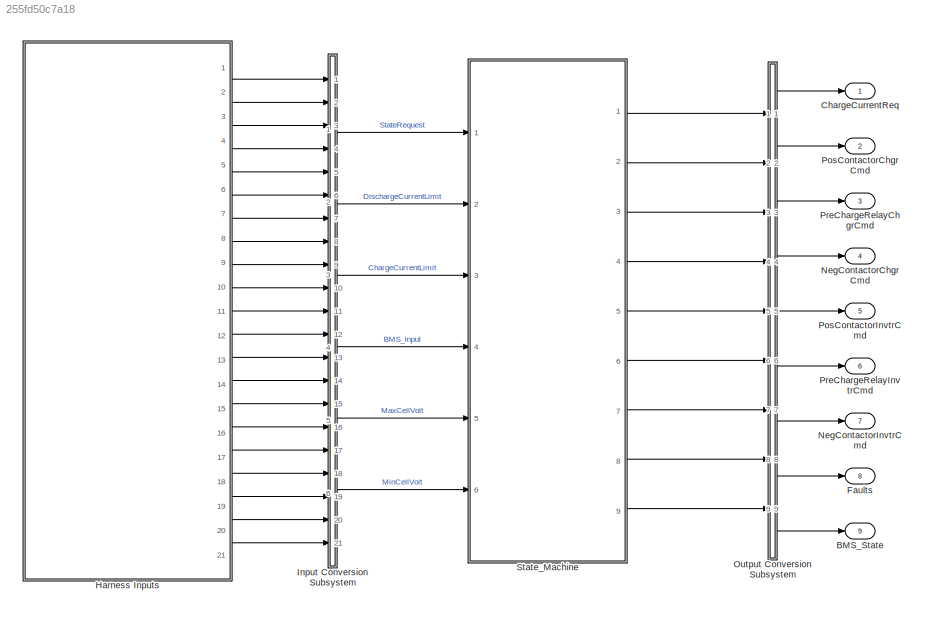
MODEL slx_255fd50c7a18
KIND model
CONFIG AbsTol = auto
CONFIG EnableMultiTasking = on
CONFIG FixedStep = 0.10000000000000001
CONFIG MaxStep = auto
CONFIG MinStep = auto
CONFIG RelTol = 1e-3
CONFIG SampleTimeConstraint = Unconstrained
CONFIG SolverName = FixedStepDiscrete
CONFIG StartTime = 0
CONFIG StopTime = 1.4000000000000001
BLOCK [Outport] BMS_State
  OutDataTypeStr = Enum: BMS_State_Enum
  Port = 9
  PortDimensions = [1]
  SignalType = real
  VarSizeSig = No
  VectorParamsAs1DForOutWhenUnconnected = off
BLOCK [Outport] ChargeCurrentReq
  OutDataTypeStr = single
  PortDimensions = [1]
  SignalType = real
  VarSizeSig = No
  VectorParamsAs1DForOutWhenUnconnected = off
BLOCK [Outport] Faults
  OutDataTypeStr = Bus: Faults
  Port = 8
  PortDimensions = 1
  SignalType = real
  VarSizeSig = No
  VectorParamsAs1DForOutWhenUnconnected = off
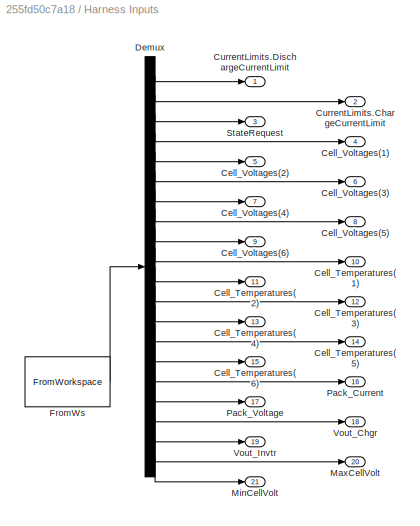
BLOCK [SubSystem] Harness Inputs
  ClipboardFcn = sigbuilder_block('clipboard');
  CloseFcn = sigbuilder_block('close');
  ContinueFcn = sigbuilder_block('continue');
  CopyFcn = sigbuilder_block('copy');
  DeleteFcn = sigbuilder_block('delete');
  LoadFcn = sigbuilder_block('load');
  MaskHideContents = on
  ModelCloseFcn = sigbuilder_block('modelClose');
  NameChangeFcn = sigbuilder_block('namechange');
  OpenFcn = sigbuilder_block('open',[50 50 520 400 ]);
  PauseFcn = sigbuilder_block('pause');
  Ports = [0, 21]
  PreSaveFcn = sigbuilder_block('preSave');
  RequestExecContextInheritance = off
  StartFcn = sigbuilder_block('start');
  StopFcn = sigbuilder_block('stop');
  Tag = STV Subsys
BLOCK [Outport] Harness Inputs/Cell_Temperatures(1)
  Port = 10
  Tag = STV Outport
  VectorParamsAs1DForOutWhenUnconnected = off
BLOCK [Outport] Harness Inputs/Cell_Temperatures(2)
  Port = 11
  Tag = STV Outport
  VectorParamsAs1DForOutWhenUnconnected = off
BLOCK [Outport] Harness Inputs/Cell_Temperatures(3)
  Port = 12
  Tag = STV Outport
  VectorParamsAs1DForOutWhenUnconnected = off
BLOCK [Outport] Harness Inputs/Cell_Temperatures(4)
  Port = 13
  Tag = STV Outport
  VectorParamsAs1DForOutWhenUnconnected = off
BLOCK [Outport] Harness Inputs/Cell_Temperatures(5)
  Port = 14
  Tag = STV Outport
  VectorParamsAs1DForOutWhenUnconnected = off
BLOCK [Outport] Harness Inputs/Cell_Temperatures(6)
  Port = 15
  Tag = STV Outport
  VectorParamsAs1DForOutWhenUnconnected = off
BLOCK [Outport] Harness Inputs/Cell_Voltages(1)
  Port = 4
  Tag = STV Outport
  VectorParamsAs1DForOutWhenUnconnected = off
BLOCK [Outport] Harness Inputs/Cell_Voltages(2)
  Port = 5
  Tag = STV Outport
  VectorParamsAs1DForOutWhenUnconnected = off
BLOCK [Outport] Harness Inputs/Cell_Voltages(3)
  Port = 6
  Tag = STV Outport
  VectorParamsAs1DForOutWhenUnconnected = off
BLOCK [Outport] Harness Inputs/Cell_Voltages(4)
  Port = 7
  Tag = STV Outport
  VectorParamsAs1DForOutWhenUnconnected = off
BLOCK [Outport] Harness Inputs/Cell_Voltages(5)
  Port = 8
  Tag = STV Outport
  VectorParamsAs1DForOutWhenUnconnected = off
BLOCK [Outport] Harness Inputs/Cell_Voltages(6)
  Port = 9
  Tag = STV Outport
  VectorParamsAs1DForOutWhenUnconnected = off
BLOCK [Outport] Harness Inputs/CurrentLimits.ChargeCurrentLimit
  Port = 2
  Tag = STV Outport
  VectorParamsAs1DForOutWhenUnconnected = off
BLOCK [Outport] Harness Inputs/CurrentLimits.DischargeCurrentLimit
  Tag = STV Outport
  VectorParamsAs1DForOutWhenUnconnected = off
BLOCK [Demux] Harness Inputs/Demux
  DisplayOption = none
  Outputs = 21
  Ports = [1, 21]
  Tag = STV Demux
BLOCK [FromWorkspace] Harness Inputs/FromWs
  Tag = STV FromWs
  VariableName = tuvar
  ZeroCross = off
BLOCK [Outport] Harness Inputs/MaxCellVolt
  Port = 20
  Tag = STV Outport
  VectorParamsAs1DForOutWhenUnconnected = off
BLOCK [Outport] Harness Inputs/MinCellVolt
  Port = 21
  Tag = STV Outport
  VectorParamsAs1DForOutWhenUnconnected = off
BLOCK [Outport] Harness Inputs/Pack_Current
  Port = 16
  Tag = STV Outport
  VectorParamsAs1DForOutWhenUnconnected = off
BLOCK [Outport] Harness Inputs/Pack_Voltage
  Port = 17
  Tag = STV Outport
  VectorParamsAs1DForOutWhenUnconnected = off
BLOCK [Outport] Harness Inputs/StateRequest
  Port = 3
  Tag = STV Outport
  VectorParamsAs1DForOutWhenUnconnected = off
BLOCK [Outport] Harness Inputs/Vout_Chgr
  Port = 18
  Tag = STV Outport
  VectorParamsAs1DForOutWhenUnconnected = off
BLOCK [Outport] Harness Inputs/Vout_Invtr
  Port = 19
  Tag = STV Outport
  VectorParamsAs1DForOutWhenUnconnected = off
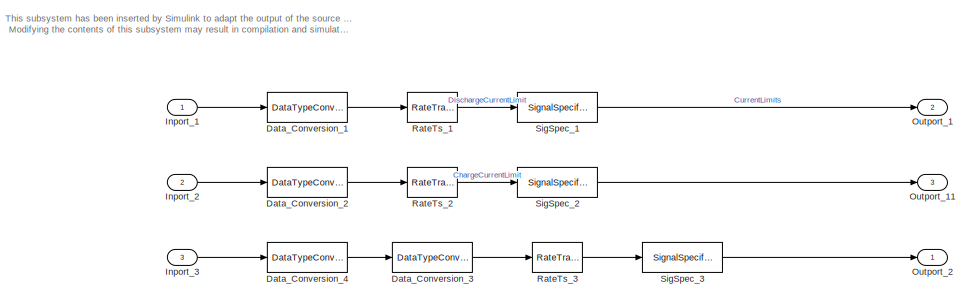
[diagram: Input Conversion Subsystem - part 1/2, full width, top band]
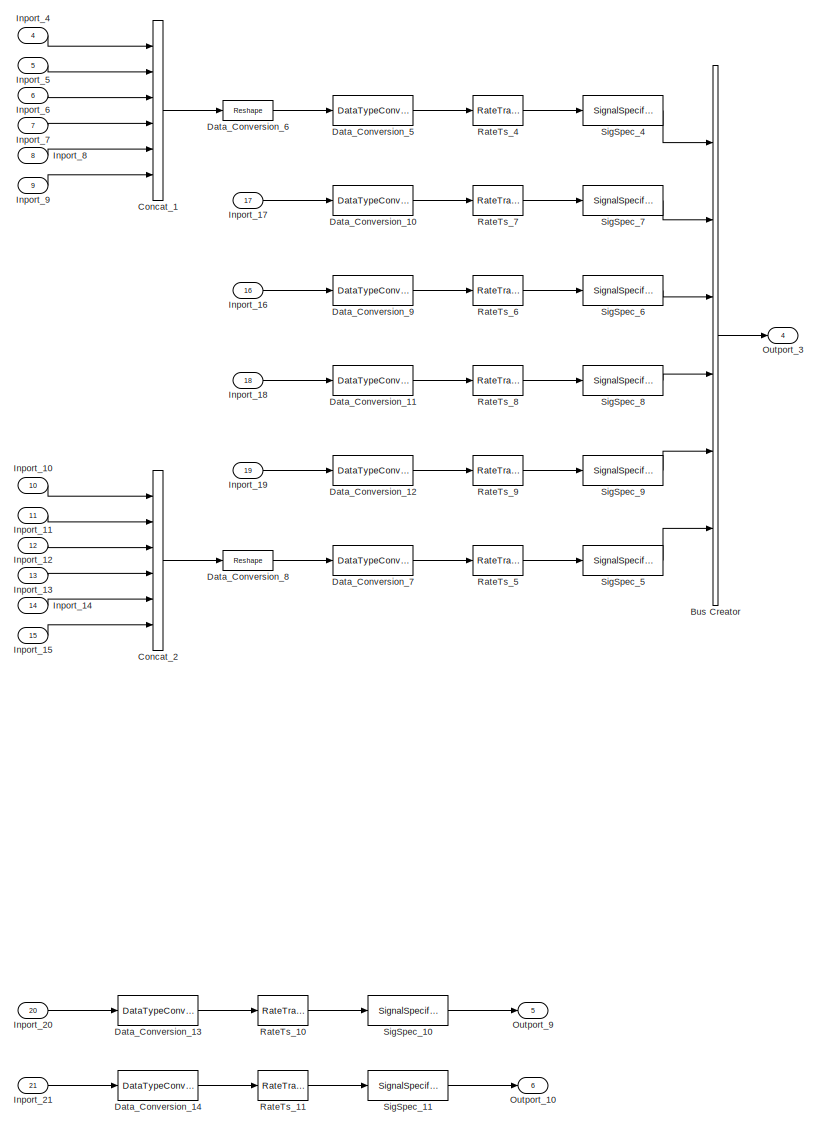
[diagram: Input Conversion Subsystem - part 2/2, most of the canvas]
BLOCK [SubSystem] Input Conversion Subsystem
  AttributesFormatString = %<Description>
  Description = Signal spec.\nand routing
  Permissions = ReadOnly
  PermitHierarchicalResolution = ExplicitOnly
  Ports = [21, 6]
  RequestExecContextInheritance = off
  Tag = __SLT_ICS__
  UserDataPersistent = on
BLOCK [BusCreator] Input Conversion Subsystem/Bus Creator
  DisplayOption = bar
  InheritFromInputs = off
  Inputs = 6
  OutDataTypeStr = Bus: BMS_Input
  Ports = [6, 1]
BLOCK [Concatenate] Input Conversion Subsystem/Concat_1
  NumInputs = 6
  Ports = [6, 1]
BLOCK [Concatenate] Input Conversion Subsystem/Concat_2
  NumInputs = 6
  Ports = [6, 1]
BLOCK [DataTypeConversion] Input Conversion Subsystem/Data_Conversion_1
  OutDataTypeStr = single
BLOCK [DataTypeConversion] Input Conversion Subsystem/Data_Conversion_10
  OutDataTypeStr = single
BLOCK [DataTypeConversion] Input Conversion Subsystem/Data_Conversion_11
  OutDataTypeStr = single
BLOCK [DataTypeConversion] Input Conversion Subsystem/Data_Conversion_12
  OutDataTypeStr = single
BLOCK [DataTypeConversion] Input Conversion Subsystem/Data_Conversion_13
  OutDataTypeStr = single
BLOCK [DataTypeConversion] Input Conversion Subsystem/Data_Conversion_14
  OutDataTypeStr = single
BLOCK [DataTypeConversion] Input Conversion Subsystem/Data_Conversion_2
  OutDataTypeStr = single
BLOCK [DataTypeConversion] Input Conversion Subsystem/Data_Conversion_3
  OutDataTypeStr = Enum: SRE
BLOCK [DataTypeConversion] Input Conversion Subsystem/Data_Conversion_4
  OutDataTypeStr = int32
  RndMeth = Round
BLOCK [DataTypeConversion] Input Conversion Subsystem/Data_Conversion_5
  OutDataTypeStr = single
BLOCK [Reshape] Input Conversion Subsystem/Data_Conversion_6
  OutputDimensionality = Customize
  OutputDimensions = [6]
  Ports = [1, 1]
BLOCK [DataTypeConversion] Input Conversion Subsystem/Data_Conversion_7
  OutDataTypeStr = single
BLOCK [Reshape] Input Conversion Subsystem/Data_Conversion_8
  OutputDimensionality = Customize
  OutputDimensions = [6]
  Ports = [1, 1]
BLOCK [DataTypeConversion] Input Conversion Subsystem/Data_Conversion_9
  OutDataTypeStr = single
BLOCK [Inport] Input Conversion Subsystem/Inport_1
BLOCK [Inport] Input Conversion Subsystem/Inport_10
  Port = 10
BLOCK [Inport] Input Conversion Subsystem/Inport_11
  Port = 11
BLOCK [Inport] Input Conversion Subsystem/Inport_12
  Port = 12
BLOCK [Inport] Input Conversion Subsystem/Inport_13
  Port = 13
BLOCK [Inport] Input Conversion Subsystem/Inport_14
  Port = 14
BLOCK [Inport] Input Conversion Subsystem/Inport_15
  Port = 15
BLOCK [Inport] Input Conversion Subsystem/Inport_16
  Port = 16
BLOCK [Inport] Input Conversion Subsystem/Inport_17
  Port = 17
BLOCK [Inport] Input Conversion Subsystem/Inport_18
  Port = 18
BLOCK [Inport] Input Conversion Subsystem/Inport_19
  Port = 19
BLOCK [Inport] Input Conversion Subsystem/Inport_2
  Port = 2
BLOCK [Inport] Input Conversion Subsystem/Inport_20
  Port = 20
BLOCK [Inport] Input Conversion Subsystem/Inport_21
  Port = 21
BLOCK [Inport] Input Conversion Subsystem/Inport_3
  Port = 3
BLOCK [Inport] Input Conversion Subsystem/Inport_4
  Port = 4
BLOCK [Inport] Input Conversion Subsystem/Inport_5
  Port = 5
BLOCK [Inport] Input Conversion Subsystem/Inport_6
  Port = 6
BLOCK [Inport] Input Conversion Subsystem/Inport_7
  Port = 7
BLOCK [Inport] Input Conversion Subsystem/Inport_8
  Port = 8
BLOCK [Inport] Input Conversion Subsystem/Inport_9
  Port = 9
BLOCK [Outport] Input Conversion Subsystem/Outport_1
  Port = 2
  VectorParamsAs1DForOutWhenUnconnected = off
BLOCK [Outport] Input Conversion Subsystem/Outport_10
  Port = 6
  VectorParamsAs1DForOutWhenUnconnected = off
BLOCK [Outport] Input Conversion Subsystem/Outport_11
  Port = 3
  VectorParamsAs1DForOutWhenUnconnected = off
BLOCK [Outport] Input Conversion Subsystem/Outport_2
  VectorParamsAs1DForOutWhenUnconnected = off
BLOCK [Outport] Input Conversion Subsystem/Outport_3
  Port = 4
  VectorParamsAs1DForOutWhenUnconnected = off
BLOCK [Outport] Input Conversion Subsystem/Outport_9
  Port = 5
  VectorParamsAs1DForOutWhenUnconnected = off
BLOCK [RateTransition] Input Conversion Subsystem/RateTs_1
  OutPortSampleTime = 0.1
BLOCK [RateTransition] Input Conversion Subsystem/RateTs_10
  OutPortSampleTime = 0.1
BLOCK [RateTransition] Input Conversion Subsystem/RateTs_11
  OutPortSampleTime = 0.1
BLOCK [RateTransition] Input Conversion Subsystem/RateTs_2
  OutPortSampleTime = 0.1
BLOCK [RateTransition] Input Conversion Subsystem/RateTs_3
  OutPortSampleTime = 0.1
BLOCK [RateTransition] Input Conversion Subsystem/RateTs_4
  OutPortSampleTime = 0.1
BLOCK [RateTransition] Input Conversion Subsystem/RateTs_5
  OutPortSampleTime = 0.1
BLOCK [RateTransition] Input Conversion Subsystem/RateTs_6
  OutPortSampleTime = 0.1
BLOCK [RateTransition] Input Conversion Subsystem/RateTs_7
  OutPortSampleTime = 0.1
BLOCK [RateTransition] Input Conversion Subsystem/RateTs_8
  OutPortSampleTime = 0.1
BLOCK [RateTransition] Input Conversion Subsystem/RateTs_9
  OutPortSampleTime = 0.1
BLOCK [SignalSpecification] Input Conversion Subsystem/SigSpec_1
  Dimensions = [1]
  OutDataTypeStr = single
  SampleTime = 0.1
  SignalType = real
  VarSizeSig = No
BLOCK [SignalSpecification] Input Conversion Subsystem/SigSpec_10
  Dimensions = [1]
  OutDataTypeStr = single
  SampleTime = 0.1
  SignalType = real
  VarSizeSig = No
BLOCK [SignalSpecification] Input Conversion Subsystem/SigSpec_11
  Dimensions = [1]
  OutDataTypeStr = single
  SampleTime = 0.1
  SignalType = real
  VarSizeSig = No
BLOCK [SignalSpecification] Input Conversion Subsystem/SigSpec_2
  Dimensions = [1]
  OutDataTypeStr = single
  SampleTime = 0.1
  SignalType = real
  VarSizeSig = No
BLOCK [SignalSpecification] Input Conversion Subsystem/SigSpec_3
  Dimensions = [1]
  OutDataTypeStr = Enum: SRE
  SampleTime = 0.1
  SignalType = real
  VarSizeSig = No
BLOCK [SignalSpecification] Input Conversion Subsystem/SigSpec_4
  Dimensions = [6]
  OutDataTypeStr = single
  SampleTime = 0.1
  SignalType = real
  VarSizeSig = No
BLOCK [SignalSpecification] Input Conversion Subsystem/SigSpec_5
  Dimensions = [6]
  OutDataTypeStr = single
  SampleTime = 0.1
  SignalType = real
  VarSizeSig = No
BLOCK [SignalSpecification] Input Conversion Subsystem/SigSpec_6
  Dimensions = [1]
  OutDataTypeStr = single
  SampleTime = 0.1
  SignalType = real
  VarSizeSig = No
BLOCK [SignalSpecification] Input Conversion Subsystem/SigSpec_7
  Dimensions = [1]
  OutDataTypeStr = single
  SampleTime = 0.1
  SignalType = real
  VarSizeSig = No
BLOCK [SignalSpecification] Input Conversion Subsystem/SigSpec_8
  Dimensions = [1]
  OutDataTypeStr = single
  SampleTime = 0.1
  SignalType = real
  VarSizeSig = No
BLOCK [SignalSpecification] Input Conversion Subsystem/SigSpec_9
  Dimensions = [1]
  OutDataTypeStr = single
  SampleTime = 0.1
  SignalType = real
  VarSizeSig = No
BLOCK [Outport] NegContactorChgrCmd
  OutDataTypeStr = boolean
  Port = 4
  PortDimensions = [1]
  SignalType = real
  VarSizeSig = No
  VectorParamsAs1DForOutWhenUnconnected = off
BLOCK [Outport] NegContactorInvtrCmd
  OutDataTypeStr = boolean
  Port = 7
  PortDimensions = [1]
  SignalType = real
  VarSizeSig = No
  VectorParamsAs1DForOutWhenUnconnected = off
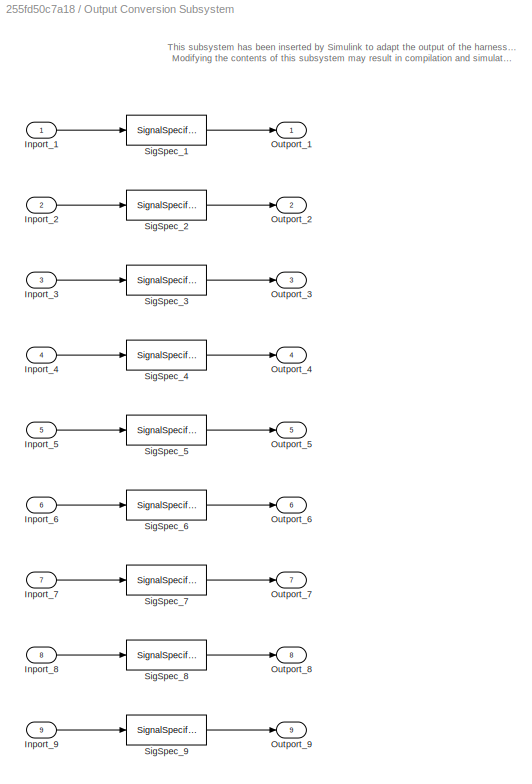
BLOCK [SubSystem] Output Conversion Subsystem
  AttributesFormatString = %<Description>
  Description = Signal spec.\nand routing
  Permissions = ReadOnly
  PermitHierarchicalResolution = ExplicitOnly
  Ports = [9, 9]
  RequestExecContextInheritance = off
  Tag = __SLT_OCS__
  UserDataPersistent = on
BLOCK [Inport] Output Conversion Subsystem/Inport_1
BLOCK [Inport] Output Conversion Subsystem/Inport_2
  Port = 2
BLOCK [Inport] Output Conversion Subsystem/Inport_3
  Port = 3
BLOCK [Inport] Output Conversion Subsystem/Inport_4
  Port = 4
BLOCK [Inport] Output Conversion Subsystem/Inport_5
  Port = 5
BLOCK [Inport] Output Conversion Subsystem/Inport_6
  Port = 6
BLOCK [Inport] Output Conversion Subsystem/Inport_7
  Port = 7
BLOCK [Inport] Output Conversion Subsystem/Inport_8
  Port = 8
BLOCK [Inport] Output Conversion Subsystem/Inport_9
  Port = 9
BLOCK [Outport] Output Conversion Subsystem/Outport_1
  VectorParamsAs1DForOutWhenUnconnected = off
BLOCK [Outport] Output Conversion Subsystem/Outport_2
  Port = 2
  VectorParamsAs1DForOutWhenUnconnected = off
BLOCK [Outport] Output Conversion Subsystem/Outport_3
  Port = 3
  VectorParamsAs1DForOutWhenUnconnected = off
BLOCK [Outport] Output Conversion Subsystem/Outport_4
  Port = 4
  VectorParamsAs1DForOutWhenUnconnected = off
BLOCK [Outport] Output Conversion Subsystem/Outport_5
  Port = 5
  VectorParamsAs1DForOutWhenUnconnected = off
BLOCK [Outport] Output Conversion Subsystem/Outport_6
  Port = 6
  VectorParamsAs1DForOutWhenUnconnected = off
BLOCK [Outport] Output Conversion Subsystem/Outport_7
  Port = 7
  VectorParamsAs1DForOutWhenUnconnected = off
BLOCK [Outport] Output Conversion Subsystem/Outport_8
  Port = 8
  VectorParamsAs1DForOutWhenUnconnected = off
BLOCK [Outport] Output Conversion Subsystem/Outport_9
  Port = 9
  VectorParamsAs1DForOutWhenUnconnected = off
BLOCK [SignalSpecification] Output Conversion Subsystem/SigSpec_1
  Dimensions = [1]
  OutDataTypeStr = single
  SampleTime = 0.1
  SignalType = real
  VarSizeSig = No
BLOCK [SignalSpecification] Output Conversion Subsystem/SigSpec_2
  Dimensions = [1]
  OutDataTypeStr = boolean
  SampleTime = 0.1
  SignalType = real
  VarSizeSig = No
BLOCK [SignalSpecification] Output Conversion Subsystem/SigSpec_3
  Dimensions = [1]
  OutDataTypeStr = boolean
  SampleTime = 0.1
  SignalType = real
  VarSizeSig = No
BLOCK [SignalSpecification] Output Conversion Subsystem/SigSpec_4
  Dimensions = [1]
  OutDataTypeStr = boolean
  SampleTime = 0.1
  SignalType = real
  VarSizeSig = No
BLOCK [SignalSpecification] Output Conversion Subsystem/SigSpec_5
  Dimensions = [1]
  OutDataTypeStr = boolean
  SampleTime = 0.1
  SignalType = real
  VarSizeSig = No
BLOCK [SignalSpecification] Output Conversion Subsystem/SigSpec_6
  Dimensions = [1]
  OutDataTypeStr = boolean
  SampleTime = 0.1
  SignalType = real
  VarSizeSig = No
BLOCK [SignalSpecification] Output Conversion Subsystem/SigSpec_7
  Dimensions = [1]
  OutDataTypeStr = boolean
  SampleTime = 0.1
  SignalType = real
  VarSizeSig = No
BLOCK [SignalSpecification] Output Conversion Subsystem/SigSpec_8
  BusOutputAsStruct = on
  Dimensions = [1]
  OutDataTypeStr = Bus: Faults
  SampleTime = 0.1
  SignalType = real
  VarSizeSig = No
BLOCK [SignalSpecification] Output Conversion Subsystem/SigSpec_9
  Dimensions = [1]
  OutDataTypeStr = Enum: BMS_State_Enum
  SampleTime = 0.1
  SignalType = real
  VarSizeSig = No
BLOCK [Outport] PosContactorChgrCmd
  OutDataTypeStr = boolean
  Port = 2
  PortDimensions = [1]
  SignalType = real
  VarSizeSig = No
  VectorParamsAs1DForOutWhenUnconnected = off
BLOCK [Outport] PosContactorInvtrCmd
  OutDataTypeStr = boolean
  Port = 5
  PortDimensions = [1]
  SignalType = real
  VarSizeSig = No
  VectorParamsAs1DForOutWhenUnconnected = off
BLOCK [Outport] PreChargeRelayChgrCmd
  OutDataTypeStr = boolean
  Port = 3
  PortDimensions = [1]
  SignalType = real
  VarSizeSig = No
  VectorParamsAs1DForOutWhenUnconnected = off
BLOCK [Outport] PreChargeRelayInvtrCmd
  OutDataTypeStr = boolean
  Port = 6
  PortDimensions = [1]
  SignalType = real
  VarSizeSig = No
  VectorParamsAs1DForOutWhenUnconnected = off
BLOCK [ModelReference] State_Machine
  ModelNameDialog = State_Machine
  ModelReferenceVersion = 1.671
  Ports = [6, 9]
ANNOTATION Input Conversion Subsystem: This subsystem has been inserted by Simulink to adapt the output of the source blocks to the interface required by the harnessed component. Modifying the contents of this subsystem may result in compilation and simulation failure.
ANNOTATION Output Conversion Subsystem: This subsystem has been inserted by Simulink to adapt the output of the harnessed component to the interface required by the sink blocks. Modifying the contents of this subsystem may result in compilation and simulation failure.
LINE Harness Inputs/Demux:1 -> Harness Inputs/CurrentLimits.DischargeCurrentLimit:1
LINE Harness Inputs/Demux:10 -> Harness Inputs/Cell_Temperatures(1):1
LINE Harness Inputs/Demux:11 -> Harness Inputs/Cell_Temperatures(2):1
LINE Harness Inputs/Demux:12 -> Harness Inputs/Cell_Temperatures(3):1
LINE Harness Inputs/Demux:13 -> Harness Inputs/Cell_Temperatures(4):1
LINE Harness Inputs/Demux:14 -> Harness Inputs/Cell_Temperatures(5):1
LINE Harness Inputs/Demux:15 -> Harness Inputs/Cell_Temperatures(6):1
LINE Harness Inputs/Demux:16 -> Harness Inputs/Pack_Current:1
LINE Harness Inputs/Demux:17 -> Harness Inputs/Pack_Voltage:1
LINE Harness Inputs/Demux:18 -> Harness Inputs/Vout_Chgr:1
LINE Harness Inputs/Demux:19 -> Harness Inputs/Vout_Invtr:1
LINE Harness Inputs/Demux:2 -> Harness Inputs/CurrentLimits.ChargeCurrentLimit:1
LINE Harness Inputs/Demux:20 -> Harness Inputs/MaxCellVolt:1
LINE Harness Inputs/Demux:21 -> Harness Inputs/MinCellVolt:1
LINE Harness Inputs/Demux:3 -> Harness Inputs/StateRequest:1
LINE Harness Inputs/Demux:4 -> Harness Inputs/Cell_Voltages(1):1
LINE Harness Inputs/Demux:5 -> Harness Inputs/Cell_Voltages(2):1
LINE Harness Inputs/Demux:6 -> Harness Inputs/Cell_Voltages(3):1
LINE Harness Inputs/Demux:7 -> Harness Inputs/Cell_Voltages(4):1
LINE Harness Inputs/Demux:8 -> Harness Inputs/Cell_Voltages(5):1
LINE Harness Inputs/Demux:9 -> Harness Inputs/Cell_Voltages(6):1
LINE Harness Inputs/FromWs:1 -> Harness Inputs/Demux:1
LINE Harness Inputs:1 -> Input Conversion Subsystem:1
LINE Harness Inputs:10 -> Input Conversion Subsystem:10
LINE Harness Inputs:11 -> Input Conversion Subsystem:11
LINE Harness Inputs:12 -> Input Conversion Subsystem:12
LINE Harness Inputs:13 -> Input Conversion Subsystem:13
LINE Harness Inputs:14 -> Input Conversion Subsystem:14
LINE Harness Inputs:15 -> Input Conversion Subsystem:15
LINE Harness Inputs:16 -> Input Conversion Subsystem:16
LINE Harness Inputs:17 -> Input Conversion Subsystem:17
LINE Harness Inputs:18 -> Input Conversion Subsystem:18
LINE Harness Inputs:19 -> Input Conversion Subsystem:19
LINE Harness Inputs:2 -> Input Conversion Subsystem:2
LINE Harness Inputs:20 -> Input Conversion Subsystem:20
LINE Harness Inputs:21 -> Input Conversion Subsystem:21
LINE Harness Inputs:3 -> Input Conversion Subsystem:3
LINE Harness Inputs:4 -> Input Conversion Subsystem:4
LINE Harness Inputs:5 -> Input Conversion Subsystem:5
LINE Harness Inputs:6 -> Input Conversion Subsystem:6
LINE Harness Inputs:7 -> Input Conversion Subsystem:7
LINE Harness Inputs:8 -> Input Conversion Subsystem:8
LINE Harness Inputs:9 -> Input Conversion Subsystem:9
LINE Input Conversion Subsystem/Bus Creator:1 -> Input Conversion Subsystem/Outport_3:1
LINE Input Conversion Subsystem/Concat_1:1 -> Input Conversion Subsystem/Data_Conversion_6:1
LINE Input Conversion Subsystem/Concat_2:1 -> Input Conversion Subsystem/Data_Conversion_8:1
LINE Input Conversion Subsystem/Data_Conversion_10:1 -> Input Conversion Subsystem/RateTs_7:1
LINE Input Conversion Subsystem/Data_Conversion_11:1 -> Input Conversion Subsystem/RateTs_8:1
LINE Input Conversion Subsystem/Data_Conversion_12:1 -> Input Conversion Subsystem/RateTs_9:1
LINE Input Conversion Subsystem/Data_Conversion_13:1 -> Input Conversion Subsystem/RateTs_10:1
LINE Input Conversion Subsystem/Data_Conversion_14:1 -> Input Conversion Subsystem/RateTs_11:1
LINE Input Conversion Subsystem/Data_Conversion_1:1 -> Input Conversion Subsystem/RateTs_1:1
LINE Input Conversion Subsystem/Data_Conversion_2:1 -> Input Conversion Subsystem/RateTs_2:1
LINE Input Conversion Subsystem/Data_Conversion_3:1 -> Input Conversion Subsystem/RateTs_3:1
LINE Input Conversion Subsystem/Data_Conversion_4:1 -> Input Conversion Subsystem/Data_Conversion_3:1
LINE Input Conversion Subsystem/Data_Conversion_5:1 -> Input Conversion Subsystem/RateTs_4:1
LINE Input Conversion Subsystem/Data_Conversion_6:1 -> Input Conversion Subsystem/Data_Conversion_5:1
LINE Input Conversion Subsystem/Data_Conversion_7:1 -> Input Conversion Subsystem/RateTs_5:1
LINE Input Conversion Subsystem/Data_Conversion_8:1 -> Input Conversion Subsystem/Data_Conversion_7:1
LINE Input Conversion Subsystem/Data_Conversion_9:1 -> Input Conversion Subsystem/RateTs_6:1
LINE Input Conversion Subsystem/Inport_10:1 -> Input Conversion Subsystem/Concat_2:1
LINE Input Conversion Subsystem/Inport_11:1 -> Input Conversion Subsystem/Concat_2:2
LINE Input Conversion Subsystem/Inport_12:1 -> Input Conversion Subsystem/Concat_2:3
LINE Input Conversion Subsystem/Inport_13:1 -> Input Conversion Subsystem/Concat_2:4
LINE Input Conversion Subsystem/Inport_14:1 -> Input Conversion Subsystem/Concat_2:5
LINE Input Conversion Subsystem/Inport_15:1 -> Input Conversion Subsystem/Concat_2:6
LINE Input Conversion Subsystem/Inport_16:1 -> Input Conversion Subsystem/Data_Conversion_9:1
LINE Input Conversion Subsystem/Inport_17:1 -> Input Conversion Subsystem/Data_Conversion_10:1
LINE Input Conversion Subsystem/Inport_18:1 -> Input Conversion Subsystem/Data_Conversion_11:1
LINE Input Conversion Subsystem/Inport_19:1 -> Input Conversion Subsystem/Data_Conversion_12:1
LINE Input Conversion Subsystem/Inport_1:1 -> Input Conversion Subsystem/Data_Conversion_1:1
LINE Input Conversion Subsystem/Inport_20:1 -> Input Conversion Subsystem/Data_Conversion_13:1
LINE Input Conversion Subsystem/Inport_21:1 -> Input Conversion Subsystem/Data_Conversion_14:1
LINE Input Conversion Subsystem/Inport_2:1 -> Input Conversion Subsystem/Data_Conversion_2:1
LINE Input Conversion Subsystem/Inport_3:1 -> Input Conversion Subsystem/Data_Conversion_4:1
LINE Input Conversion Subsystem/Inport_4:1 -> Input Conversion Subsystem/Concat_1:1
LINE Input Conversion Subsystem/Inport_5:1 -> Input Conversion Subsystem/Concat_1:2
LINE Input Conversion Subsystem/Inport_6:1 -> Input Conversion Subsystem/Concat_1:3
LINE Input Conversion Subsystem/Inport_7:1 -> Input Conversion Subsystem/Concat_1:4
LINE Input Conversion Subsystem/Inport_8:1 -> Input Conversion Subsystem/Concat_1:5
LINE Input Conversion Subsystem/Inport_9:1 -> Input Conversion Subsystem/Concat_1:6
LINE Input Conversion Subsystem/RateTs_10:1 -> Input Conversion Subsystem/SigSpec_10:1
LINE Input Conversion Subsystem/RateTs_11:1 -> Input Conversion Subsystem/SigSpec_11:1
LINE Input Conversion Subsystem/RateTs_1:1 -> Input Conversion Subsystem/SigSpec_1:1
LINE Input Conversion Subsystem/RateTs_2:1 -> Input Conversion Subsystem/SigSpec_2:1
LINE Input Conversion Subsystem/RateTs_3:1 -> Input Conversion Subsystem/SigSpec_3:1
LINE Input Conversion Subsystem/RateTs_4:1 -> Input Conversion Subsystem/SigSpec_4:1
LINE Input Conversion Subsystem/RateTs_5:1 -> Input Conversion Subsystem/SigSpec_5:1
LINE Input Conversion Subsystem/RateTs_6:1 -> Input Conversion Subsystem/SigSpec_6:1
LINE Input Conversion Subsystem/RateTs_7:1 -> Input Conversion Subsystem/SigSpec_7:1
LINE Input Conversion Subsystem/RateTs_8:1 -> Input Conversion Subsystem/SigSpec_8:1
LINE Input Conversion Subsystem/RateTs_9:1 -> Input Conversion Subsystem/SigSpec_9:1
LINE Input Conversion Subsystem/SigSpec_10:1 -> Input Conversion Subsystem/Outport_9:1
LINE Input Conversion Subsystem/SigSpec_11:1 -> Input Conversion Subsystem/Outport_10:1
LINE Input Conversion Subsystem/SigSpec_1:1 -> Input Conversion Subsystem/Outport_1:1
LINE Input Conversion Subsystem/SigSpec_2:1 -> Input Conversion Subsystem/Outport_11:1
LINE Input Conversion Subsystem/SigSpec_3:1 -> Input Conversion Subsystem/Outport_2:1
LINE Input Conversion Subsystem/SigSpec_4:1 -> Input Conversion Subsystem/Bus Creator:1
LINE Input Conversion Subsystem/SigSpec_5:1 -> Input Conversion Subsystem/Bus Creator:6
LINE Input Conversion Subsystem/SigSpec_6:1 -> Input Conversion Subsystem/Bus Creator:3
LINE Input Conversion Subsystem/SigSpec_7:1 -> Input Conversion Subsystem/Bus Creator:2
LINE Input Conversion Subsystem/SigSpec_8:1 -> Input Conversion Subsystem/Bus Creator:4
LINE Input Conversion Subsystem/SigSpec_9:1 -> Input Conversion Subsystem/Bus Creator:5
LINE Input Conversion Subsystem:1 -> State_Machine:1
LINE Input Conversion Subsystem:2 -> State_Machine:2
LINE Input Conversion Subsystem:3 -> State_Machine:3
LINE Input Conversion Subsystem:4 -> State_Machine:4
LINE Input Conversion Subsystem:5 -> State_Machine:5
LINE Input Conversion Subsystem:6 -> State_Machine:6
LINE Output Conversion Subsystem/Inport_1:1 -> Output Conversion Subsystem/SigSpec_1:1
LINE Output Conversion Subsystem/Inport_2:1 -> Output Conversion Subsystem/SigSpec_2:1
LINE Output Conversion Subsystem/Inport_3:1 -> Output Conversion Subsystem/SigSpec_3:1
LINE Output Conversion Subsystem/Inport_4:1 -> Output Conversion Subsystem/SigSpec_4:1
LINE Output Conversion Subsystem/Inport_5:1 -> Output Conversion Subsystem/SigSpec_5:1
LINE Output Conversion Subsystem/Inport_6:1 -> Output Conversion Subsystem/SigSpec_6:1
LINE Output Conversion Subsystem/Inport_7:1 -> Output Conversion Subsystem/SigSpec_7:1
LINE Output Conversion Subsystem/Inport_8:1 -> Output Conversion Subsystem/SigSpec_8:1
LINE Output Conversion Subsystem/Inport_9:1 -> Output Conversion Subsystem/SigSpec_9:1
LINE Output Conversion Subsystem/SigSpec_1:1 -> Output Conversion Subsystem/Outport_1:1
LINE Output Conversion Subsystem/SigSpec_2:1 -> Output Conversion Subsystem/Outport_2:1
LINE Output Conversion Subsystem/SigSpec_3:1 -> Output Conversion Subsystem/Outport_3:1
LINE Output Conversion Subsystem/SigSpec_4:1 -> Output Conversion Subsystem/Outport_4:1
LINE Output Conversion Subsystem/SigSpec_5:1 -> Output Conversion Subsystem/Outport_5:1
LINE Output Conversion Subsystem/SigSpec_6:1 -> Output Conversion Subsystem/Outport_6:1
LINE Output Conversion Subsystem/SigSpec_7:1 -> Output Conversion Subsystem/Outport_7:1
LINE Output Conversion Subsystem/SigSpec_8:1 -> Output Conversion Subsystem/Outport_8:1
LINE Output Conversion Subsystem/SigSpec_9:1 -> Output Conversion Subsystem/Outport_9:1
LINE Output Conversion Subsystem:1 -> ChargeCurrentReq:1
LINE Output Conversion Subsystem:2 -> PosContactorChgrCmd:1
LINE Output Conversion Subsystem:3 -> PreChargeRelayChgrCmd:1
LINE Output Conversion Subsystem:4 -> NegContactorChgrCmd:1
LINE Output Conversion Subsystem:5 -> PosContactorInvtrCmd:1
LINE Output Conversion Subsystem:6 -> PreChargeRelayInvtrCmd:1
LINE Output Conversion Subsystem:7 -> NegContactorInvtrCmd:1
LINE Output Conversion Subsystem:8 -> Faults:1
LINE Output Conversion Subsystem:9 -> BMS_State:1
LINE State_Machine:1 -> Output Conversion Subsystem:1
LINE State_Machine:2 -> Output Conversion Subsystem:2
LINE State_Machine:3 -> Output Conversion Subsystem:3
LINE State_Machine:4 -> Output Conversion Subsystem:4
LINE State_Machine:5 -> Output Conversion Subsystem:5
LINE State_Machine:6 -> Output Conversion Subsystem:6
LINE State_Machine:7 -> Output Conversion Subsystem:7
LINE State_Machine:8 -> Output Conversion Subsystem:8
LINE State_Machine:9 -> Output Conversion Subsystem:9
